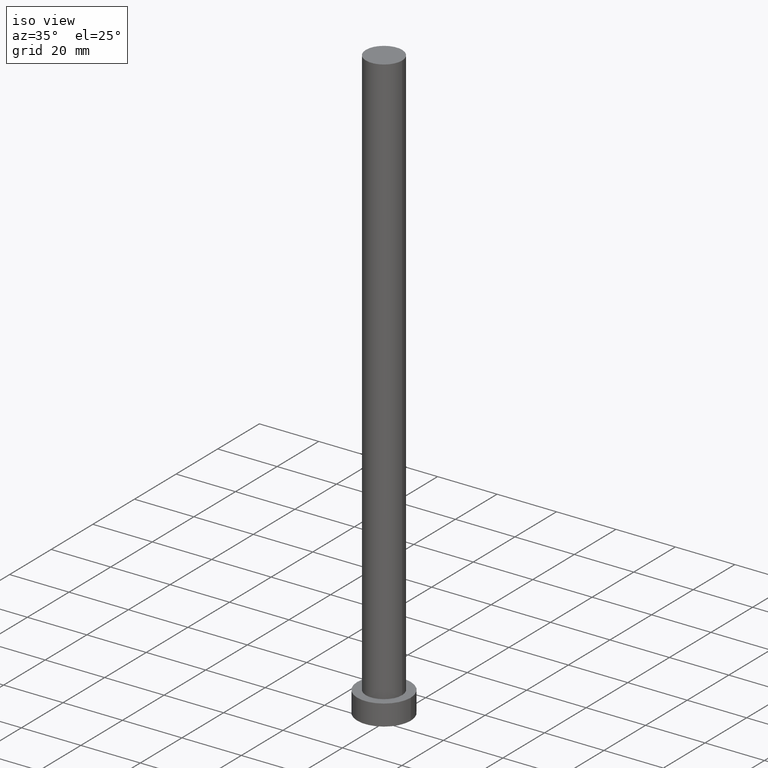
[diagram: clean part render]
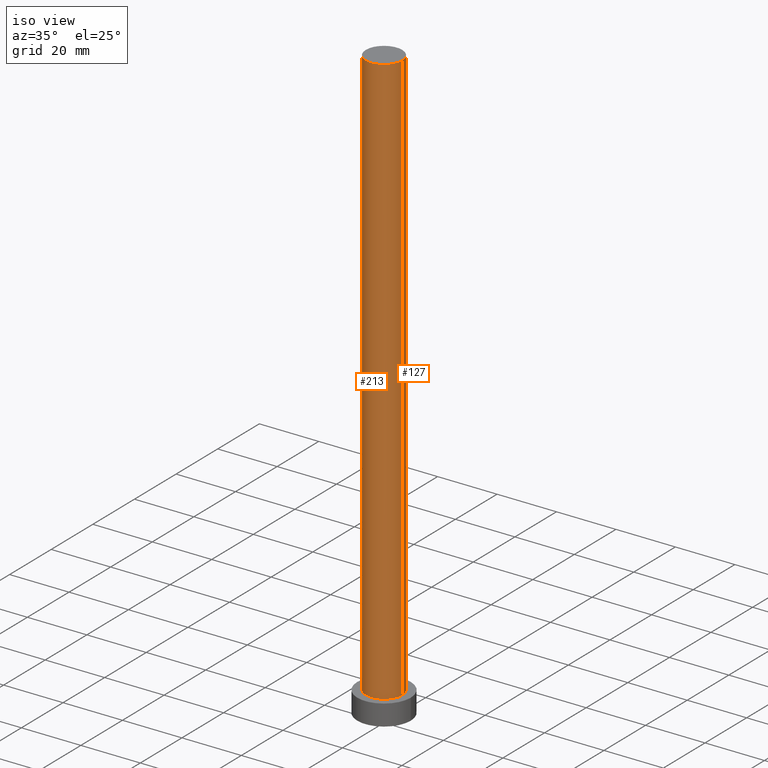
[diagram: same view with one multi-face feature highlighted, each face labeled with its STEP entity id]
A machine part, iso view. The highlighted faces form ONE feature: a constant-radius fillet chain: 2 tangent blend faces with common blend radius 6.1 mm. The faces share edges in the B-rep.
Their STEP definitions:
[1] entity #127 (Cylinder):
#1 = CYLINDRICAL_SURFACE ( 'NONE', #236, 6.099999999999999645 ) ;
#5 = DIRECTION ( 'NONE',  ( 1.000000000000000000, 0.000000000000000000, 0.000000000000000000 ) ) ;
#12 = VERTEX_POINT ( 'NONE', #194 ) ;
#23 = DIRECTION ( 'NONE',  ( -0.000000000000000000, -0.000000000000000000, -1.000000000000000000 ) ) ;
#25 = CIRCLE ( 'NONE', #42, 6.099999999999999645 ) ;
#26 = EDGE_CURVE ( 'NONE', #188, #220, #30, .T. ) ;
#30 = LINE ( 'NONE', #229, #107 ) ;
#36 = ORIENTED_EDGE ( 'NONE', *, *, #200, .F. ) ;
#39 = DIRECTION ( 'NONE',  ( 0.000000000000000000, 0.000000000000000000, 1.000000000000000000 ) ) ;
#42 = AXIS2_PLACEMENT_3D ( 'NONE', #160, #39, #5 ) ;
#45 = EDGE_LOOP ( 'NONE', ( #124, #171, #90, #36 ) ) ;
#79 = CARTESIAN_POINT ( 'NONE',  ( -6.099999999999999645, 0.000000000000000000, 200.0000000000000000 ) ) ;
#82 = CIRCLE ( 'NONE', #172, 6.099999999999999645 ) ;
#90 = ORIENTED_EDGE ( 'NONE', *, *, #123, .T. ) ;
#93 = VECTOR ( 'NONE', #104, 1000.000000000000000 ) ;
#104 = DIRECTION ( 'NONE',  ( -0.000000000000000000, -0.000000000000000000, -1.000000000000000000 ) ) ;
#107 = VECTOR ( 'NONE', #227, 1000.000000000000000 ) ;
#118 = CARTESIAN_POINT ( 'NONE',  ( 6.099999999999999645, 7.470345474798854293E-16, 200.0000000000000000 ) ) ;
#123 = EDGE_CURVE ( 'NONE', #220, #12, #82, .T. ) ;
#124 = ORIENTED_EDGE ( 'NONE', *, *, #163, .F. ) ;
#127 = ADVANCED_FACE ( 'NONE', ( #214 ), #1, .T. ) ;
#158 = DIRECTION ( 'NONE',  ( 0.000000000000000000, 0.000000000000000000, 1.000000000000000000 ) ) ;
#160 = CARTESIAN_POINT ( 'NONE',  ( 0.000000000000000000, 0.000000000000000000, 200.0000000000000000 ) ) ;
#163 = EDGE_CURVE ( 'NONE', #188, #186, #25, .T. ) ;
#171 = ORIENTED_EDGE ( 'NONE', *, *, #26, .T. ) ;
#172 = AXIS2_PLACEMENT_3D ( 'NONE', #176, #158, #180 ) ;
#176 = CARTESIAN_POINT ( 'NONE',  ( 0.000000000000000000, 0.000000000000000000, 7.000000000000000000 ) ) ;
#177 = CARTESIAN_POINT ( 'NONE',  ( -6.099999999999999645, 0.000000000000000000, 200.0000000000000000 ) ) ;
#180 = DIRECTION ( 'NONE',  ( 1.000000000000000000, 0.000000000000000000, 0.000000000000000000 ) ) ;
#186 = VERTEX_POINT ( 'NONE', #177 ) ;
#188 = VERTEX_POINT ( 'NONE', #118 ) ;
#194 = CARTESIAN_POINT ( 'NONE',  ( -6.099999999999999645, 0.000000000000000000, 7.000000000000000000 ) ) ;
#199 = LINE ( 'NONE', #79, #93 ) ;
#200 = EDGE_CURVE ( 'NONE', #186, #12, #199, .T. ) ;
#201 = CARTESIAN_POINT ( 'NONE',  ( 6.099999999999999645, 7.470345474798854293E-16, 7.000000000000000000 ) ) ;
#214 = FACE_OUTER_BOUND ( 'NONE', #45, .T. ) ;
#220 = VERTEX_POINT ( 'NONE', #201 ) ;
#227 = DIRECTION ( 'NONE',  ( -0.000000000000000000, -0.000000000000000000, -1.000000000000000000 ) ) ;
#229 = CARTESIAN_POINT ( 'NONE',  ( 6.099999999999999645, 7.470345474798854293E-16, 200.0000000000000000 ) ) ;
#236 = AXIS2_PLACEMENT_3D ( 'NONE', #254, #23, #250 ) ;
#250 = DIRECTION ( 'NONE',  ( -1.000000000000000000, 0.000000000000000000, 0.000000000000000000 ) ) ;
#254 = CARTESIAN_POINT ( 'NONE',  ( 0.000000000000000000, 0.000000000000000000, 200.0000000000000000 ) ) ;
[2] entity #213 (Cylinder):
#12 = VERTEX_POINT ( 'NONE', #194 ) ;
#19 = DIRECTION ( 'NONE',  ( 0.000000000000000000, 0.000000000000000000, 1.000000000000000000 ) ) ;
#26 = EDGE_CURVE ( 'NONE', #188, #220, #30, .T. ) ;
#30 = LINE ( 'NONE', #229, #107 ) ;
#37 = EDGE_LOOP ( 'NONE', ( #246, #242, #84, #203 ) ) ;
#59 = FACE_OUTER_BOUND ( 'NONE', #37, .T. ) ;
#61 = DIRECTION ( 'NONE',  ( 1.000000000000000000, 0.000000000000000000, 0.000000000000000000 ) ) ;
#77 = DIRECTION ( 'NONE',  ( -1.000000000000000000, 0.000000000000000000, 0.000000000000000000 ) ) ;
#79 = CARTESIAN_POINT ( 'NONE',  ( -6.099999999999999645, 0.000000000000000000, 200.0000000000000000 ) ) ;
#84 = ORIENTED_EDGE ( 'NONE', *, *, #200, .T. ) ;
#93 = VECTOR ( 'NONE', #104, 1000.000000000000000 ) ;
#98 = CIRCLE ( 'NONE', #146, 6.099999999999999645 ) ;
#104 = DIRECTION ( 'NONE',  ( -0.000000000000000000, -0.000000000000000000, -1.000000000000000000 ) ) ;
#107 = VECTOR ( 'NONE', #227, 1000.000000000000000 ) ;
#114 = AXIS2_PLACEMENT_3D ( 'NONE', #157, #156, #120 ) ;
#118 = CARTESIAN_POINT ( 'NONE',  ( 6.099999999999999645, 7.470345474798854293E-16, 200.0000000000000000 ) ) ;
#120 = DIRECTION ( 'NONE',  ( 1.000000000000000000, 0.000000000000000000, 0.000000000000000000 ) ) ;
#121 = CARTESIAN_POINT ( 'NONE',  ( 0.000000000000000000, 0.000000000000000000, 7.000000000000000000 ) ) ;
#125 = CIRCLE ( 'NONE', #114, 6.099999999999999645 ) ;
#141 = EDGE_CURVE ( 'NONE', #12, #220, #98, .T. ) ;
#146 = AXIS2_PLACEMENT_3D ( 'NONE', #121, #19, #61 ) ;
#156 = DIRECTION ( 'NONE',  ( 0.000000000000000000, 0.000000000000000000, 1.000000000000000000 ) ) ;
#157 = CARTESIAN_POINT ( 'NONE',  ( 0.000000000000000000, 0.000000000000000000, 200.0000000000000000 ) ) ;
#177 = CARTESIAN_POINT ( 'NONE',  ( -6.099999999999999645, 0.000000000000000000, 200.0000000000000000 ) ) ;
#186 = VERTEX_POINT ( 'NONE', #177 ) ;
#188 = VERTEX_POINT ( 'NONE', #118 ) ;
#194 = CARTESIAN_POINT ( 'NONE',  ( -6.099999999999999645, 0.000000000000000000, 7.000000000000000000 ) ) ;
#199 = LINE ( 'NONE', #79, #93 ) ;
#200 = EDGE_CURVE ( 'NONE', #186, #12, #199, .T. ) ;
#201 = CARTESIAN_POINT ( 'NONE',  ( 6.099999999999999645, 7.470345474798854293E-16, 7.000000000000000000 ) ) ;
#203 = ORIENTED_EDGE ( 'NONE', *, *, #141, .T. ) ;
#212 = CYLINDRICAL_SURFACE ( 'NONE', #231, 6.099999999999999645 ) ;
#213 = ADVANCED_FACE ( 'NONE', ( #59 ), #212, .T. ) ;
#219 = EDGE_CURVE ( 'NONE', #186, #188, #125, .T. ) ;
#220 = VERTEX_POINT ( 'NONE', #201 ) ;
#227 = DIRECTION ( 'NONE',  ( -0.000000000000000000, -0.000000000000000000, -1.000000000000000000 ) ) ;
#229 = CARTESIAN_POINT ( 'NONE',  ( 6.099999999999999645, 7.470345474798854293E-16, 200.0000000000000000 ) ) ;
#231 = AXIS2_PLACEMENT_3D ( 'NONE', #251, #234, #77 ) ;
#234 = DIRECTION ( 'NONE',  ( -0.000000000000000000, -0.000000000000000000, -1.000000000000000000 ) ) ;
#242 = ORIENTED_EDGE ( 'NONE', *, *, #219, .F. ) ;
#246 = ORIENTED_EDGE ( 'NONE', *, *, #26, .F. ) ;
#251 = CARTESIAN_POINT ( 'NONE',  ( 0.000000000000000000, 0.000000000000000000, 200.0000000000000000 ) ) ;